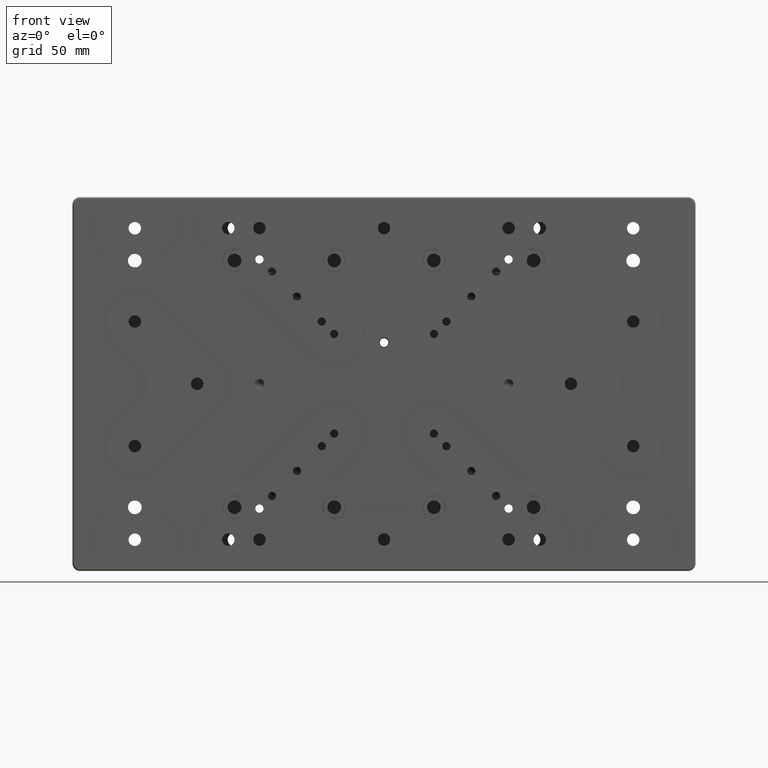
[diagram: clean part render]
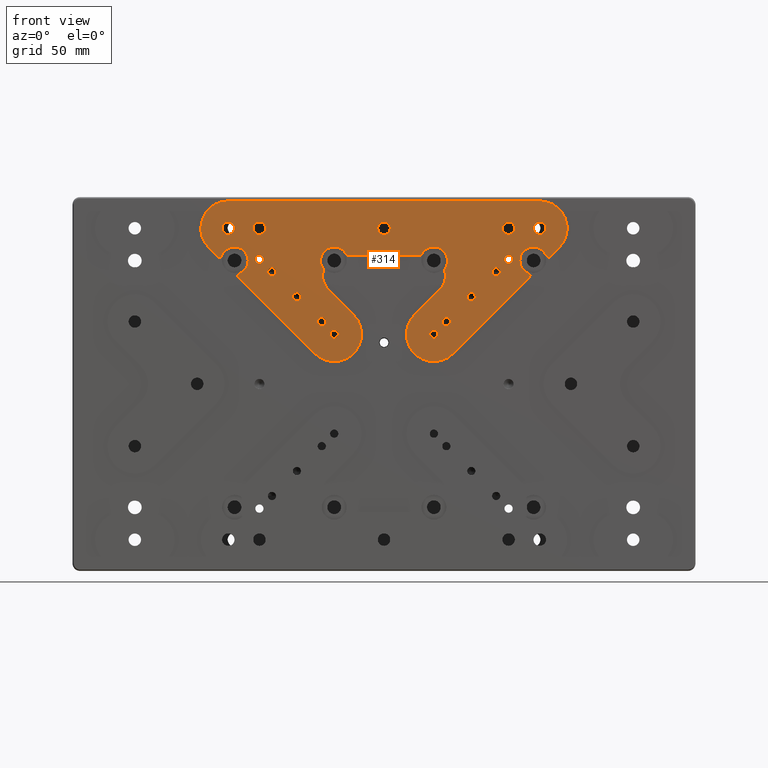
[diagram: same view with one face highlighted and labeled with its STEP entity id]
A machine part, front view. The second image highlights one B-rep face of the part: STEP entity #314.
In plain terms, the highlighted planar face has unit normal (0, -1, 0).
Its self-contained STEP definition (entity closure, byte-faithful):
#126 = VERTEX_POINT ( 'NONE', #35319 ) ;
#135 = CARTESIAN_POINT ( 'NONE',  ( -25.33468588810999833, -22.00000000000000000, 45.78635940414000771 ) ) ;
#165 = CARTESIAN_POINT ( 'NONE',  ( 70.27817459304999659, -22.00000000000000000, 54.72182540695000341 ) ) ;
#235 = AXIS2_PLACEMENT_3D ( 'NONE', #4990, #5521, #32147 ) ;
#289 = CARTESIAN_POINT ( 'NONE',  ( -24.51396498224690390, -22.00000000000000000, 46.35768872658108108 ) ) ;
#314 = ADVANCED_FACE ( 'NONE', ( #20672, #7757, #14792, #34071, #18635, #9782, #4073, #12105, #9954, #4428, #7116, #17644, #15150, #28354, #17994, #33903 ), #26864, .T. ) ;
#387 = DIRECTION ( 'NONE',  ( -0.7071067811865474617, 0.000000000000000000, -0.7071067811865474617 ) ) ;
#490 = AXIS2_PLACEMENT_3D ( 'NONE', #9859, #14870, #12178 ) ;
#622 = AXIS2_PLACEMENT_3D ( 'NONE', #8923, #24992, #24641 ) ;
#741 = DIRECTION ( 'NONE',  ( 0.000000000000000000, 0.000000000000000000, -1.000000000000000000 ) ) ;
#841 = VERTEX_POINT ( 'NONE', #32891 ) ;
#857 = DIRECTION ( 'NONE',  ( -0.000000000000000000, 1.000000000000000000, -0.000000000000000000 ) ) ;
#961 = CARTESIAN_POINT ( 'NONE',  ( 22.28679656440368717, -22.00000000000000000, 37.84314575050630935 ) ) ;
#969 = EDGE_CURVE ( 'NONE', #23107, #2589, #21902, .T. ) ;
#1018 = ORIENTED_EDGE ( 'NONE', *, *, #19244, .T. ) ;
#1122 = EDGE_CURVE ( 'NONE', #7445, #17041, #12797, .T. ) ;
#1287 = AXIS2_PLACEMENT_3D ( 'NONE', #29651, #21081, #13047 ) ;
#1350 = ORIENTED_EDGE ( 'NONE', *, *, #25538, .T. ) ;
#1408 = VERTEX_POINT ( 'NONE', #14818 ) ;
#1428 = EDGE_CURVE ( 'NONE', #5919, #11094, #6550, .T. ) ;
#1431 = DIRECTION ( 'NONE',  ( -5.204170427930416550E-15, 0.000000000000000000, -1.000000000000000000 ) ) ;
#1472 = CIRCLE ( 'NONE', #19158, 2.500000000000002220 ) ;
#1579 = CARTESIAN_POINT ( 'NONE',  ( 66.04110478143999785, -22.00000000000000000, 51.89896915770999897 ) ) ;
#1661 = DIRECTION ( 'NONE',  ( -0.000000000000000000, 1.000000000000000000, -0.000000000000000000 ) ) ;
#1681 = VERTEX_POINT ( 'NONE', #12582 ) ;
#1715 = VERTEX_POINT ( 'NONE', #12440 ) ;
#1717 = EDGE_CURVE ( 'NONE', #3681, #9119, #30631, .T. ) ;
#1742 = DIRECTION ( 'NONE',  ( 0.000000000000000000, 0.000000000000000000, 1.000000000000000000 ) ) ;
#2033 = LINE ( 'NONE', #31694, #25067 ) ;
#2124 = DIRECTION ( 'NONE',  ( -0.000000000000000000, 1.000000000000000000, -0.000000000000000000 ) ) ;
#2172 = DIRECTION ( 'NONE',  ( -0.000000000000000000, 1.000000000000000000, -0.000000000000000000 ) ) ;
#2390 = ORIENTED_EDGE ( 'NONE', *, *, #27738, .T. ) ;
#2443 = ORIENTED_EDGE ( 'NONE', *, *, #15724, .T. ) ;
#2470 = DIRECTION ( 'NONE',  ( 0.000000000000000000, 0.000000000000000000, -1.000000000000000000 ) ) ;
#2505 = DIRECTION ( 'NONE',  ( 0.000000000000000000, 0.000000000000000000, -1.000000000000000000 ) ) ;
#2589 = VERTEX_POINT ( 'NONE', #14453 ) ;
#2650 = EDGE_LOOP ( 'NONE', ( #2443 ) ) ;
#2786 = EDGE_CURVE ( 'NONE', #7997, #19605, #19019, .T. ) ;
#2853 = VECTOR ( 'NONE', #5654, 1000.000000000000114 ) ;
#3136 = VERTEX_POINT ( 'NONE', #11516 ) ;
#3619 = CARTESIAN_POINT ( 'NONE',  ( -15.12083890225190608, -22.00000000000000000, 52.03846153845997691 ) ) ;
#3629 = EDGE_CURVE ( 'NONE', #12613, #12613, #3712, .T. ) ;
#3673 = CIRCLE ( 'NONE', #23634, 5.499999999999998224 ) ;
#3681 = VERTEX_POINT ( 'NONE', #289 ) ;
#3712 = CIRCLE ( 'NONE', #4272, 1.649999999999998579 ) ;
#3718 = EDGE_CURVE ( 'NONE', #7694, #5270, #20458, .T. ) ;
#3733 = DIRECTION ( 'NONE',  ( 0.000000000000000000, 0.000000000000000000, -1.000000000000000000 ) ) ;
#3795 = ORIENTED_EDGE ( 'NONE', *, *, #23768, .T. ) ;
#3832 = CARTESIAN_POINT ( 'NONE',  ( -62.50000000000000000, -22.00000000000000000, 60.00000000000000000 ) ) ;
#3893 = VERTEX_POINT ( 'NONE', #12788 ) ;
#4007 = CIRCLE ( 'NONE', #31390, 1.649999999999998579 ) ;
#4073 = FACE_BOUND ( 'NONE', #4124, .T. ) ;
#4124 = EDGE_LOOP ( 'NONE', ( #6701 ) ) ;
#4172 = EDGE_CURVE ( 'NONE', #5919, #27802, #19701, .T. ) ;
#4192 = EDGE_CURVE ( 'NONE', #33791, #26666, #32692, .T. ) ;
#4194 = DIRECTION ( 'NONE',  ( -0.000000000000000000, 1.000000000000000000, -0.000000000000000000 ) ) ;
#4251 = VERTEX_POINT ( 'NONE', #35177 ) ;
#4272 = AXIS2_PLACEMENT_3D ( 'NONE', #17088, #27792, #17266 ) ;
#4428 = FACE_BOUND ( 'NONE', #19130, .T. ) ;
#4611 = CARTESIAN_POINT ( 'NONE',  ( -60.00000000000000000, -22.00000000000000000, 49.50000000000000000 ) ) ;
#4631 = AXIS2_PLACEMENT_3D ( 'NONE', #20951, #4194, #25793 ) ;
#4757 = ORIENTED_EDGE ( 'NONE', *, *, #6163, .T. ) ;
#4990 = CARTESIAN_POINT ( 'NONE',  ( -20.00000000000000000, -22.00000000000000000, 20.00000000000000000 ) ) ;
#5050 = DIRECTION ( 'NONE',  ( -0.000000000000000000, 1.000000000000000000, -0.000000000000000000 ) ) ;
#5270 = VERTEX_POINT ( 'NONE', #20080 ) ;
#5353 = AXIS2_PLACEMENT_3D ( 'NONE', #9427, #29541, #15326 ) ;
#5366 = ORIENTED_EDGE ( 'NONE', *, *, #32565, .F. ) ;
#5521 = DIRECTION ( 'NONE',  ( -0.000000000000000000, 1.000000000000000000, -0.000000000000000000 ) ) ;
#5539 = DIRECTION ( 'NONE',  ( 0.7071067811865474617, 0.000000000000000000, 0.7071067811865474617 ) ) ;
#5654 = DIRECTION ( 'NONE',  ( -0.7071067811865474617, 0.000000000000000000, 0.7071067811865474617 ) ) ;
#5733 = CIRCLE ( 'NONE', #19394, 11.00000000000000000 ) ;
#5776 = CIRCLE ( 'NONE', #4631, 2.500000000000002220 ) ;
#5805 = CARTESIAN_POINT ( 'NONE',  ( 15.12083890225009597, -22.00000000000000000, 52.03846153846092193 ) ) ;
#5836 = DIRECTION ( 'NONE',  ( 0.000000000000000000, 0.000000000000000000, 1.000000000000000000 ) ) ;
#5919 = VERTEX_POINT ( 'NONE', #30854 ) ;
#6163 = EDGE_CURVE ( 'NONE', #8379, #28938, #28400, .T. ) ;
#6333 = ORIENTED_EDGE ( 'NONE', *, *, #20483, .F. ) ;
#6550 = CIRCLE ( 'NONE', #29365, 5.499999999999998224 ) ;
#6629 = VECTOR ( 'NONE', #387, 1000.000000000000114 ) ;
#6701 = ORIENTED_EDGE ( 'NONE', *, *, #29204, .T. ) ;
#6841 = DIRECTION ( 'NONE',  ( 0.000000000000000000, 1.000000000000000000, 0.000000000000000000 ) ) ;
#6843 = CIRCLE ( 'NONE', #16512, 1.000000000000000888 ) ;
#6869 = CARTESIAN_POINT ( 'NONE',  ( -14.23371870265999917, -22.00000000000000000, 51.50000000000000711 ) ) ;
#6951 = VERTEX_POINT ( 'NONE', #10531 ) ;
#7006 = CIRCLE ( 'NONE', #13251, 1.649999999999998579 ) ;
#7041 = CARTESIAN_POINT ( 'NONE',  ( 16.62994231491000008, -22.00000000000000000, 51.50000000000000711 ) ) ;
#7099 = CARTESIAN_POINT ( 'NONE',  ( 50.00000000000000000, -22.00000000000000000, 60.00000000000000000 ) ) ;
#7116 = FACE_BOUND ( 'NONE', #28043, .T. ) ;
#7256 = CIRCLE ( 'NONE', #22627, 8.000000000000000000 ) ;
#7368 = CIRCLE ( 'NONE', #27314, 1.000000000000000888 ) ;
#7421 = CIRCLE ( 'NONE', #27369, 1.649999999999998579 ) ;
#7424 = DIRECTION ( 'NONE',  ( 0.000000000000000000, 0.000000000000000000, -1.000000000000000000 ) ) ;
#7445 = VERTEX_POINT ( 'NONE', #28111 ) ;
#7514 = DIRECTION ( 'NONE',  ( 0.000000000000000000, 0.000000000000000000, -1.000000000000000000 ) ) ;
#7694 = VERTEX_POINT ( 'NONE', #23098 ) ;
#7757 = FACE_BOUND ( 'NONE', #13665, .T. ) ;
#7761 = DIRECTION ( 'NONE',  ( -0.000000000000000000, 1.000000000000000000, -0.000000000000000000 ) ) ;
#7866 = DIRECTION ( 'NONE',  ( -0.000000000000000000, 1.000000000000000000, -0.000000000000000000 ) ) ;
#7969 = EDGE_LOOP ( 'NONE', ( #34433 ) ) ;
#7997 = VERTEX_POINT ( 'NONE', #33430 ) ;
#8275 = VERTEX_POINT ( 'NONE', #35061 ) ;
#8362 = DIRECTION ( 'NONE',  ( 1.734723475976805517E-14, 0.000000000000000000, -1.000000000000000000 ) ) ;
#8379 = VERTEX_POINT ( 'NONE', #24455 ) ;
#8413 = VERTEX_POINT ( 'NONE', #35361 ) ;
#8470 = AXIS2_PLACEMENT_3D ( 'NONE', #23150, #34051, #12798 ) ;
#8585 = ORIENTED_EDGE ( 'NONE', *, *, #27463, .T. ) ;
#8605 = VECTOR ( 'NONE', #31947, 1000.000000000000114 ) ;
#8620 = VECTOR ( 'NONE', #5539, 1000.000000000000114 ) ;
#8623 = DIRECTION ( 'NONE',  ( 0.000000000000000000, 0.000000000000000000, -1.000000000000000000 ) ) ;
#8923 = CARTESIAN_POINT ( 'NONE',  ( 25.33468588810999833, -22.00000000000000000, 45.78635940414000771 ) ) ;
#8955 = EDGE_CURVE ( 'NONE', #15905, #15905, #5776, .T. ) ;
#9119 = VERTEX_POINT ( 'NONE', #3619 ) ;
#9216 = CARTESIAN_POINT ( 'NONE',  ( -20.00000000000000000, -22.00000000000000000, 49.50000000000000000 ) ) ;
#9396 = CARTESIAN_POINT ( 'NONE',  ( 70.27817459304999659, -22.00000000000000000, 54.72182540695000341 ) ) ;
#9427 = CARTESIAN_POINT ( 'NONE',  ( -125.0000000000000000, -22.00000000000000000, 75.00000000000000000 ) ) ;
#9581 = EDGE_CURVE ( 'NONE', #841, #29764, #32027, .T. ) ;
#9689 = CARTESIAN_POINT ( 'NONE',  ( -14.23371870265999917, -22.00000000000000000, 52.50000000000000000 ) ) ;
#9782 = FACE_BOUND ( 'NONE', #2650, .T. ) ;
#9801 = DIRECTION ( 'NONE',  ( 0.000000000000000000, 1.000000000000000000, 0.000000000000000000 ) ) ;
#9859 = CARTESIAN_POINT ( 'NONE',  ( -35.00000000000000000, -22.00000000000000000, 35.00000000000000000 ) ) ;
#9954 = FACE_BOUND ( 'NONE', #7969, .T. ) ;
#10222 = CARTESIAN_POINT ( 'NONE',  ( -45.00000000000000000, -22.00000000000000000, 45.00000000000000000 ) ) ;
#10369 = CARTESIAN_POINT ( 'NONE',  ( 62.50000000000000000, -22.00000000000000000, 60.00000000000000000 ) ) ;
#10401 = DIRECTION ( 'NONE',  ( 0.000000000000000000, 0.000000000000000000, -1.000000000000000000 ) ) ;
#10531 = CARTESIAN_POINT ( 'NONE',  ( -58.30813762347576557, -22.00000000000000000, 42.75178843737423051 ) ) ;
#10555 = VECTOR ( 'NONE', #20278, 1000.000000000000114 ) ;
#10703 = DIRECTION ( 'NONE',  ( 0.000000000000000000, 1.000000000000000000, 0.000000000000000000 ) ) ;
#10765 = ORIENTED_EDGE ( 'NONE', *, *, #19383, .F. ) ;
#10808 = VERTEX_POINT ( 'NONE', #24552 ) ;
#11013 = DIRECTION ( 'NONE',  ( 0.000000000000000000, 0.000000000000000000, -1.000000000000000000 ) ) ;
#11094 = VERTEX_POINT ( 'NONE', #23797 ) ;
#11516 = CARTESIAN_POINT ( 'NONE',  ( 0.000000000000000000, -22.00000000000000000, 60.00000000000000000 ) ) ;
#11701 = ORIENTED_EDGE ( 'NONE', *, *, #1717, .T. ) ;
#11825 = DIRECTION ( 'NONE',  ( -0.000000000000000000, 1.000000000000000000, -0.000000000000000000 ) ) ;
#11863 = VERTEX_POINT ( 'NONE', #3832 ) ;
#12105 = FACE_BOUND ( 'NONE', #24033, .T. ) ;
#12126 = VERTEX_POINT ( 'NONE', #6869 ) ;
#12178 = DIRECTION ( 'NONE',  ( 0.000000000000000000, 0.000000000000000000, -1.000000000000000000 ) ) ;
#12220 = ORIENTED_EDGE ( 'NONE', *, *, #28216, .T. ) ;
#12267 = VERTEX_POINT ( 'NONE', #7099 ) ;
#12440 = CARTESIAN_POINT ( 'NONE',  ( 45.00000000000000000, -22.00000000000000000, 43.35000000000000142 ) ) ;
#12513 = CARTESIAN_POINT ( 'NONE',  ( 14.23371870265999917, -22.00000000000000000, 52.50000000000000000 ) ) ;
#12553 = CARTESIAN_POINT ( 'NONE',  ( -66.74821156262500210, -22.00000000000000000, 51.19186237652500893 ) ) ;
#12582 = CARTESIAN_POINT ( 'NONE',  ( 50.00000000000000000, -22.00000000000000000, 48.35000000000000142 ) ) ;
#12613 = VERTEX_POINT ( 'NONE', #23501 ) ;
#12635 = CIRCLE ( 'NONE', #32600, 1.649999999999998579 ) ;
#12664 = CARTESIAN_POINT ( 'NONE',  ( -27.77817459305000014, -22.00000000000000000, 12.22182540694999986 ) ) ;
#12723 = DIRECTION ( 'NONE',  ( 0.000000000000000000, 0.000000000000000000, 1.000000000000000000 ) ) ;
#12788 = CARTESIAN_POINT ( 'NONE',  ( -24.36749215775230937, -22.00000000000000000, 45.53231947034836224 ) ) ;
#12797 = CIRCLE ( 'NONE', #235, 11.00000000000000000 ) ;
#12798 = DIRECTION ( 'NONE',  ( 0.000000000000000000, 0.000000000000000000, -1.000000000000000000 ) ) ;
#12973 = CIRCLE ( 'NONE', #18101, 1.000000000000000888 ) ;
#13047 = DIRECTION ( 'NONE',  ( 0.000000000000000000, 0.000000000000000000, -1.000000000000000000 ) ) ;
#13066 = AXIS2_PLACEMENT_3D ( 'NONE', #20027, #17000, #741 ) ;
#13251 = AXIS2_PLACEMENT_3D ( 'NONE', #10222, #31840, #26311 ) ;
#13473 = EDGE_CURVE ( 'NONE', #19983, #8413, #32387, .T. ) ;
#13665 = EDGE_LOOP ( 'NONE', ( #20464 ) ) ;
#13681 = CIRCLE ( 'NONE', #27920, 1.000000000000000888 ) ;
#13720 = VECTOR ( 'NONE', #31318, 1000.000000000000000 ) ;
#13838 = DIRECTION ( 'NONE',  ( -0.000000000000000000, 1.000000000000000000, -0.000000000000000000 ) ) ;
#14045 = LINE ( 'NONE', #19203, #2853 ) ;
#14080 = AXIS2_PLACEMENT_3D ( 'NONE', #28945, #32153, #7514 ) ;
#14092 = CARTESIAN_POINT ( 'NONE',  ( -16.62994231491000008, -22.00000000000000000, 43.50000000000000711 ) ) ;
#14189 = ORIENTED_EDGE ( 'NONE', *, *, #16268, .T. ) ;
#14453 = CARTESIAN_POINT ( 'NONE',  ( 14.23371870265999917, -22.00000000000000000, 51.50000000000000711 ) ) ;
#14537 = EDGE_LOOP ( 'NONE', ( #27472 ) ) ;
#14605 = EDGE_CURVE ( 'NONE', #1408, #1408, #7006, .T. ) ;
#14792 = FACE_BOUND ( 'NONE', #32295, .T. ) ;
#14818 = CARTESIAN_POINT ( 'NONE',  ( -45.00000000000000000, -22.00000000000000000, 43.35000000000000142 ) ) ;
#14870 = DIRECTION ( 'NONE',  ( -0.000000000000000000, 1.000000000000000000, -0.000000000000000000 ) ) ;
#14941 = CARTESIAN_POINT ( 'NONE',  ( 35.00000000000000000, -22.00000000000000000, 35.00000000000000000 ) ) ;
#15150 = FACE_BOUND ( 'NONE', #33045, .T. ) ;
#15219 = VECTOR ( 'NONE', #32997, 1000.000000000000000 ) ;
#15308 = VERTEX_POINT ( 'NONE', #26196 ) ;
#15326 = DIRECTION ( 'NONE',  ( 0.000000000000000000, -0.000000000000000000, -1.000000000000000000 ) ) ;
#15368 = CIRCLE ( 'NONE', #27882, 2.500000000000002220 ) ;
#15519 = DIRECTION ( 'NONE',  ( 0.000000000000000000, 0.000000000000000000, 1.000000000000000000 ) ) ;
#15551 = CIRCLE ( 'NONE', #1287, 1.649999999999998579 ) ;
#15724 = EDGE_CURVE ( 'NONE', #32125, #32125, #31034, .T. ) ;
#15809 = ORIENTED_EDGE ( 'NONE', *, *, #25783, .F. ) ;
#15905 = VERTEX_POINT ( 'NONE', #10369 ) ;
#15978 = CARTESIAN_POINT ( 'NONE',  ( -50.00000000000000000, -22.00000000000000000, 50.00000000000000000 ) ) ;
#16157 = ORIENTED_EDGE ( 'NONE', *, *, #21141, .F. ) ;
#16268 = EDGE_CURVE ( 'NONE', #23107, #29764, #3673, .T. ) ;
#16315 = ORIENTED_EDGE ( 'NONE', *, *, #25954, .T. ) ;
#16512 = AXIS2_PLACEMENT_3D ( 'NONE', #1579, #9801, #15519 ) ;
#16641 = CARTESIAN_POINT ( 'NONE',  ( 65.11170404583428706, -22.00000000000000000, 51.52989697960132531 ) ) ;
#16670 = EDGE_CURVE ( 'NONE', #19435, #19605, #33172, .T. ) ;
#17000 = DIRECTION ( 'NONE',  ( -0.000000000000000000, 1.000000000000000000, -0.000000000000000000 ) ) ;
#17041 = VERTEX_POINT ( 'NONE', #32791 ) ;
#17088 = CARTESIAN_POINT ( 'NONE',  ( -20.00000000000000000, -22.00000000000000000, 20.00000000000000000 ) ) ;
#17091 = CARTESIAN_POINT ( 'NONE',  ( -62.50000000000000000, -22.00000000000000000, 73.50000000000000000 ) ) ;
#17266 = DIRECTION ( 'NONE',  ( 0.000000000000000000, 0.000000000000000000, -1.000000000000000000 ) ) ;
#17556 = ORIENTED_EDGE ( 'NONE', *, *, #28726, .T. ) ;
#17644 = FACE_BOUND ( 'NONE', #31574, .T. ) ;
#17994 = FACE_BOUND ( 'NONE', #32329, .T. ) ;
#18101 = AXIS2_PLACEMENT_3D ( 'NONE', #30675, #19947, #30855 ) ;
#18157 = CIRCLE ( 'NONE', #8470, 1.649999999999998579 ) ;
#18236 = EDGE_CURVE ( 'NONE', #33003, #33003, #18157, .T. ) ;
#18239 = ORIENTED_EDGE ( 'NONE', *, *, #8955, .T. ) ;
#18621 = CARTESIAN_POINT ( 'NONE',  ( 12.22182540694999986, -22.00000000000000000, 27.77817459305000014 ) ) ;
#18635 = FACE_BOUND ( 'NONE', #22581, .T. ) ;
#18865 = ORIENTED_EDGE ( 'NONE', *, *, #33670, .T. ) ;
#19019 = CIRCLE ( 'NONE', #23596, 10.99999999999999645 ) ;
#19095 = CARTESIAN_POINT ( 'NONE',  ( -66.04110478143999785, -22.00000000000000000, 51.89896915770999897 ) ) ;
#19109 = EDGE_CURVE ( 'NONE', #19435, #5270, #25606, .T. ) ;
#19114 = EDGE_LOOP ( 'NONE', ( #8585 ) ) ;
#19130 = EDGE_LOOP ( 'NONE', ( #3795 ) ) ;
#19158 = AXIS2_PLACEMENT_3D ( 'NONE', #33093, #21998, #8623 ) ;
#19201 = CIRCLE ( 'NONE', #26611, 2.500000000000002220 ) ;
#19203 = CARTESIAN_POINT ( 'NONE',  ( -22.28679656439999945, -22.00000000000000000, 37.84314575050999707 ) ) ;
#19244 = EDGE_CURVE ( 'NONE', #126, #126, #27318, .T. ) ;
#19383 = EDGE_CURVE ( 'NONE', #6951, #11094, #31333, .T. ) ;
#19394 = AXIS2_PLACEMENT_3D ( 'NONE', #28624, #11825, #22720 ) ;
#19435 = VERTEX_POINT ( 'NONE', #22448 ) ;
#19605 = VERTEX_POINT ( 'NONE', #25300 ) ;
#19701 = CIRCLE ( 'NONE', #25748, 1.000000000000000888 ) ;
#19947 = DIRECTION ( 'NONE',  ( -0.000000000000000000, 1.000000000000000000, -0.000000000000000000 ) ) ;
#19983 = VERTEX_POINT ( 'NONE', #961 ) ;
#20027 = CARTESIAN_POINT ( 'NONE',  ( 62.50000000000000000, -22.00000000000000000, 62.50000000000000000 ) ) ;
#20059 = EDGE_CURVE ( 'NONE', #6951, #17041, #2033, .T. ) ;
#20080 = CARTESIAN_POINT ( 'NONE',  ( 70.27817459304999659, -22.00000000000000000, 54.72182540695000341 ) ) ;
#20278 = DIRECTION ( 'NONE',  ( 0.7071067811865474617, 0.000000000000000000, 0.7071067811865474617 ) ) ;
#20294 = CARTESIAN_POINT ( 'NONE',  ( 60.00000000000000000, -22.00000000000000000, 49.50000000000000000 ) ) ;
#20304 = CARTESIAN_POINT ( 'NONE',  ( 58.30813762347500528, -22.00000000000000000, 42.75178843737501211 ) ) ;
#20404 = LINE ( 'NONE', #7041, #13720 ) ;
#20458 = LINE ( 'NONE', #9396, #10555 ) ;
#20464 = ORIENTED_EDGE ( 'NONE', *, *, #33260, .T. ) ;
#20483 = EDGE_CURVE ( 'NONE', #12126, #9119, #7368, .T. ) ;
#20672 = FACE_BOUND ( 'NONE', #14537, .T. ) ;
#20926 = ORIENTED_EDGE ( 'NONE', *, *, #29452, .T. ) ;
#20951 = CARTESIAN_POINT ( 'NONE',  ( 62.50000000000000000, -22.00000000000000000, 62.50000000000000000 ) ) ;
#21040 = CARTESIAN_POINT ( 'NONE',  ( 35.00000000000000000, -22.00000000000000000, 33.35000000000000142 ) ) ;
#21042 = LINE ( 'NONE', #12664, #8605 ) ;
#21081 = DIRECTION ( 'NONE',  ( -0.000000000000000000, 1.000000000000000000, -0.000000000000000000 ) ) ;
#21111 = CARTESIAN_POINT ( 'NONE',  ( 20.00000000000000000, -22.00000000000000000, 20.00000000000000000 ) ) ;
#21141 = EDGE_CURVE ( 'NONE', #3681, #3893, #13681, .T. ) ;
#21280 = CARTESIAN_POINT ( 'NONE',  ( 16.62994231491000008, -22.00000000000000000, 43.50000000000000711 ) ) ;
#21567 = DIRECTION ( 'NONE',  ( -0.000000000000000000, 1.000000000000000000, -0.000000000000000000 ) ) ;
#21609 = CARTESIAN_POINT ( 'NONE',  ( 50.00000000000000000, -22.00000000000000000, 50.00000000000000000 ) ) ;
#21625 = EDGE_CURVE ( 'NONE', #33791, #8413, #5733, .T. ) ;
#21745 = CARTESIAN_POINT ( 'NONE',  ( -50.00000000000000000, -22.00000000000000000, 62.50000000000000000 ) ) ;
#21902 = CIRCLE ( 'NONE', #24199, 1.000000000000000888 ) ;
#21998 = DIRECTION ( 'NONE',  ( -0.000000000000000000, 1.000000000000000000, -0.000000000000000000 ) ) ;
#22410 = VERTEX_POINT ( 'NONE', #28298 ) ;
#22448 = CARTESIAN_POINT ( 'NONE',  ( 62.50000000000000000, -22.00000000000000000, 73.50000000000000000 ) ) ;
#22581 = EDGE_LOOP ( 'NONE', ( #1018 ) ) ;
#22627 = AXIS2_PLACEMENT_3D ( 'NONE', #14092, #857, #3733 ) ;
#22649 = CIRCLE ( 'NONE', #32923, 1.649999999999998579 ) ;
#22720 = DIRECTION ( 'NONE',  ( 1.892425610156516974E-15, 0.000000000000000000, -1.000000000000000000 ) ) ;
#22772 = AXIS2_PLACEMENT_3D ( 'NONE', #24461, #35368, #29476 ) ;
#22812 = ORIENTED_EDGE ( 'NONE', *, *, #3629, .T. ) ;
#22839 = ORIENTED_EDGE ( 'NONE', *, *, #9581, .F. ) ;
#23000 = ORIENTED_EDGE ( 'NONE', *, *, #18236, .T. ) ;
#23098 = CARTESIAN_POINT ( 'NONE',  ( 66.74821156262578370, -22.00000000000000000, 51.19186237652423443 ) ) ;
#23107 = VERTEX_POINT ( 'NONE', #5805 ) ;
#23150 = CARTESIAN_POINT ( 'NONE',  ( -25.00000000000000000, -22.00000000000000000, 25.00000000000000000 ) ) ;
#23501 = CARTESIAN_POINT ( 'NONE',  ( -20.00000000000000000, -22.00000000000000000, 18.35000000000000142 ) ) ;
#23537 = CARTESIAN_POINT ( 'NONE',  ( -62.50000000000000000, -22.00000000000000000, 62.50000000000000000 ) ) ;
#23596 = AXIS2_PLACEMENT_3D ( 'NONE', #23537, #34431, #11013 ) ;
#23613 = AXIS2_PLACEMENT_3D ( 'NONE', #14941, #5050, #34036 ) ;
#23634 = AXIS2_PLACEMENT_3D ( 'NONE', #32325, #10703, #29646 ) ;
#23768 = EDGE_CURVE ( 'NONE', #1715, #1715, #15551, .T. ) ;
#23797 = CARTESIAN_POINT ( 'NONE',  ( -57.97010302039867469, -22.00000000000000000, 44.38829595416571294 ) ) ;
#23816 = DIRECTION ( 'NONE',  ( 0.7071067811865474617, 0.000000000000000000, -0.7071067811865474617 ) ) ;
#23968 = CARTESIAN_POINT ( 'NONE',  ( 25.00000000000000000, -22.00000000000000000, 25.00000000000000000 ) ) ;
#24033 = EDGE_LOOP ( 'NONE', ( #18239 ) ) ;
#24199 = AXIS2_PLACEMENT_3D ( 'NONE', #12513, #2124, #1431 ) ;
#24240 = CARTESIAN_POINT ( 'NONE',  ( -25.00000000000000000, -22.00000000000000000, 23.35000000000000142 ) ) ;
#24252 = ORIENTED_EDGE ( 'NONE', *, *, #1428, .T. ) ;
#24338 = AXIS2_PLACEMENT_3D ( 'NONE', #9216, #33681, #5836 ) ;
#24344 = CARTESIAN_POINT ( 'NONE',  ( 0.000000000000000000, -22.00000000000000000, 62.50000000000000000 ) ) ;
#24427 = ORIENTED_EDGE ( 'NONE', *, *, #13473, .T. ) ;
#24455 = CARTESIAN_POINT ( 'NONE',  ( 57.97010302039895180, -22.00000000000000000, 44.38829595416639506 ) ) ;
#24461 = CARTESIAN_POINT ( 'NONE',  ( -57.60103084229000103, -22.00000000000000000, 43.45889521856000215 ) ) ;
#24483 = CIRCLE ( 'NONE', #25633, 8.000000000000000000 ) ;
#24552 = CARTESIAN_POINT ( 'NONE',  ( 20.00000000000000000, -22.00000000000000000, 18.35000000000000142 ) ) ;
#24641 = DIRECTION ( 'NONE',  ( 0.000000000000000000, 0.000000000000000000, 1.000000000000000000 ) ) ;
#24702 = EDGE_CURVE ( 'NONE', #12267, #12267, #1472, .T. ) ;
#24992 = DIRECTION ( 'NONE',  ( 0.000000000000000000, 1.000000000000000000, 0.000000000000000000 ) ) ;
#25067 = VECTOR ( 'NONE', #23816, 1000.000000000000114 ) ;
#25300 = CARTESIAN_POINT ( 'NONE',  ( -62.50000000000000000, -22.00000000000000000, 73.50000000000000000 ) ) ;
#25538 = EDGE_CURVE ( 'NONE', #15308, #15308, #19201, .T. ) ;
#25606 = CIRCLE ( 'NONE', #13066, 10.99999999999999645 ) ;
#25633 = AXIS2_PLACEMENT_3D ( 'NONE', #21280, #2172, #32186 ) ;
#25748 = AXIS2_PLACEMENT_3D ( 'NONE', #19095, #7866, #2505 ) ;
#25783 = EDGE_CURVE ( 'NONE', #8379, #26666, #12973, .T. ) ;
#25793 = DIRECTION ( 'NONE',  ( 0.000000000000000000, 0.000000000000000000, -1.000000000000000000 ) ) ;
#25812 = ORIENTED_EDGE ( 'NONE', *, *, #3718, .T. ) ;
#25954 = EDGE_CURVE ( 'NONE', #10808, #10808, #22649, .T. ) ;
#26040 = DIRECTION ( 'NONE',  ( 0.000000000000000000, 1.000000000000000000, 0.000000000000000000 ) ) ;
#26102 = ORIENTED_EDGE ( 'NONE', *, *, #16670, .T. ) ;
#26196 = CARTESIAN_POINT ( 'NONE',  ( -50.00000000000000000, -22.00000000000000000, 60.00000000000000000 ) ) ;
#26303 = ORIENTED_EDGE ( 'NONE', *, *, #969, .F. ) ;
#26311 = DIRECTION ( 'NONE',  ( 0.000000000000000000, 0.000000000000000000, -1.000000000000000000 ) ) ;
#26611 = AXIS2_PLACEMENT_3D ( 'NONE', #21745, #27111, #2470 ) ;
#26631 = ORIENTED_EDGE ( 'NONE', *, *, #4172, .F. ) ;
#26666 = VERTEX_POINT ( 'NONE', #20304 ) ;
#26864 = PLANE ( 'NONE',  #5353 ) ;
#27040 = DIRECTION ( 'NONE',  ( 0.000000000000000000, 0.000000000000000000, -1.000000000000000000 ) ) ;
#27111 = DIRECTION ( 'NONE',  ( -0.000000000000000000, 1.000000000000000000, -0.000000000000000000 ) ) ;
#27158 = ORIENTED_EDGE ( 'NONE', *, *, #21625, .F. ) ;
#27180 = ORIENTED_EDGE ( 'NONE', *, *, #19109, .F. ) ;
#27314 = AXIS2_PLACEMENT_3D ( 'NONE', #9689, #6841, #12723 ) ;
#27318 = CIRCLE ( 'NONE', #490, 1.649999999999998579 ) ;
#27369 = AXIS2_PLACEMENT_3D ( 'NONE', #21609, #31813, #32171 ) ;
#27463 = EDGE_CURVE ( 'NONE', #3136, #3136, #15368, .T. ) ;
#27472 = ORIENTED_EDGE ( 'NONE', *, *, #28433, .T. ) ;
#27738 = EDGE_CURVE ( 'NONE', #841, #19983, #24483, .T. ) ;
#27792 = DIRECTION ( 'NONE',  ( -0.000000000000000000, 1.000000000000000000, -0.000000000000000000 ) ) ;
#27802 = VERTEX_POINT ( 'NONE', #12553 ) ;
#27882 = AXIS2_PLACEMENT_3D ( 'NONE', #24344, #13838, #27040 ) ;
#27920 = AXIS2_PLACEMENT_3D ( 'NONE', #135, #21567, #8362 ) ;
#28043 = EDGE_LOOP ( 'NONE', ( #23000 ) ) ;
#28111 = CARTESIAN_POINT ( 'NONE',  ( -12.22182540694648978, -22.00000000000000000, 27.77817459305351022 ) ) ;
#28216 = EDGE_CURVE ( 'NONE', #7445, #4251, #14045, .T. ) ;
#28298 = CARTESIAN_POINT ( 'NONE',  ( -50.00000000000000000, -22.00000000000000000, 48.35000000000000142 ) ) ;
#28354 = FACE_BOUND ( 'NONE', #19114, .T. ) ;
#28400 = CIRCLE ( 'NONE', #29521, 5.499999999999998224 ) ;
#28424 = ORIENTED_EDGE ( 'NONE', *, *, #1122, .F. ) ;
#28433 = EDGE_CURVE ( 'NONE', #22410, #22410, #4007, .T. ) ;
#28521 = DIRECTION ( 'NONE',  ( 0.000000000000000000, 0.000000000000000000, 1.000000000000000000 ) ) ;
#28624 = CARTESIAN_POINT ( 'NONE',  ( 20.00000000000000000, -22.00000000000000000, 20.00000000000000000 ) ) ;
#28726 = EDGE_CURVE ( 'NONE', #12126, #2589, #20404, .T. ) ;
#28938 = VERTEX_POINT ( 'NONE', #16641 ) ;
#28945 = CARTESIAN_POINT ( 'NONE',  ( -62.50000000000000000, -22.00000000000000000, 62.50000000000000000 ) ) ;
#29204 = EDGE_CURVE ( 'NONE', #11863, #11863, #34065, .T. ) ;
#29365 = AXIS2_PLACEMENT_3D ( 'NONE', #4611, #26040, #1742 ) ;
#29452 = EDGE_CURVE ( 'NONE', #4251, #3893, #7256, .T. ) ;
#29476 = DIRECTION ( 'NONE',  ( 0.000000000000000000, 0.000000000000000000, 1.000000000000000000 ) ) ;
#29521 = AXIS2_PLACEMENT_3D ( 'NONE', #20294, #31198, #28521 ) ;
#29541 = DIRECTION ( 'NONE',  ( 0.000000000000000000, -1.000000000000000000, 0.000000000000000000 ) ) ;
#29646 = DIRECTION ( 'NONE',  ( 0.000000000000000000, 0.000000000000000000, 1.000000000000000000 ) ) ;
#29651 = CARTESIAN_POINT ( 'NONE',  ( 45.00000000000000000, -22.00000000000000000, 45.00000000000000000 ) ) ;
#29764 = VERTEX_POINT ( 'NONE', #33999 ) ;
#30631 = CIRCLE ( 'NONE', #24338, 5.499999999999998224 ) ;
#30675 = CARTESIAN_POINT ( 'NONE',  ( 57.60103084229000103, -22.00000000000000000, 43.45889521856000215 ) ) ;
#30854 = CARTESIAN_POINT ( 'NONE',  ( -65.11170404583360494, -22.00000000000000000, 51.52989697960104820 ) ) ;
#30855 = DIRECTION ( 'NONE',  ( 6.938893903907222067E-15, 0.000000000000000000, -1.000000000000000000 ) ) ;
#31034 = CIRCLE ( 'NONE', #23613, 1.649999999999998579 ) ;
#31198 = DIRECTION ( 'NONE',  ( 0.000000000000000000, 1.000000000000000000, 0.000000000000000000 ) ) ;
#31318 = DIRECTION ( 'NONE',  ( 1.000000000000000000, 0.000000000000000000, -0.000000000000000000 ) ) ;
#31333 = CIRCLE ( 'NONE', #22772, 1.000000000000000888 ) ;
#31390 = AXIS2_PLACEMENT_3D ( 'NONE', #15978, #7761, #7424 ) ;
#31463 = EDGE_LOOP ( 'NONE', ( #4757, #5366, #25812, #27180, #26102, #34589, #18865, #26631, #24252, #10765, #33925, #28424, #12220, #20926, #16157, #11701, #6333, #17556, #26303, #14189, #22839, #2390, #24427, #27158, #33287, #15809 ) ) ;
#31574 = EDGE_LOOP ( 'NONE', ( #32094 ) ) ;
#31694 = CARTESIAN_POINT ( 'NONE',  ( -27.77817459305000014, -22.00000000000000000, 12.22182540694999986 ) ) ;
#31813 = DIRECTION ( 'NONE',  ( -0.000000000000000000, 1.000000000000000000, -0.000000000000000000 ) ) ;
#31840 = DIRECTION ( 'NONE',  ( -0.000000000000000000, 1.000000000000000000, -0.000000000000000000 ) ) ;
#31947 = DIRECTION ( 'NONE',  ( 0.7071067811865474617, 0.000000000000000000, -0.7071067811865474617 ) ) ;
#32027 = CIRCLE ( 'NONE', #622, 1.000000000000000888 ) ;
#32094 = ORIENTED_EDGE ( 'NONE', *, *, #34292, .T. ) ;
#32125 = VERTEX_POINT ( 'NONE', #21040 ) ;
#32147 = DIRECTION ( 'NONE',  ( 0.000000000000000000, 0.000000000000000000, -1.000000000000000000 ) ) ;
#32153 = DIRECTION ( 'NONE',  ( -0.000000000000000000, 1.000000000000000000, -0.000000000000000000 ) ) ;
#32171 = DIRECTION ( 'NONE',  ( 0.000000000000000000, 0.000000000000000000, -1.000000000000000000 ) ) ;
#32186 = DIRECTION ( 'NONE',  ( 1.734723475976807094E-15, 0.000000000000000000, -1.000000000000000000 ) ) ;
#32295 = EDGE_LOOP ( 'NONE', ( #22812 ) ) ;
#32325 = CARTESIAN_POINT ( 'NONE',  ( 20.00000000000000000, -22.00000000000000000, 49.50000000000000000 ) ) ;
#32329 = EDGE_LOOP ( 'NONE', ( #33530 ) ) ;
#32368 = DIRECTION ( 'NONE',  ( 0.000000000000000000, 0.000000000000000000, -1.000000000000000000 ) ) ;
#32387 = LINE ( 'NONE', #18621, #6629 ) ;
#32565 = EDGE_CURVE ( 'NONE', #7694, #28938, #6843, .T. ) ;
#32600 = AXIS2_PLACEMENT_3D ( 'NONE', #23968, #34865, #10401 ) ;
#32692 = LINE ( 'NONE', #165, #8620 ) ;
#32791 = CARTESIAN_POINT ( 'NONE',  ( -27.77817459305000014, -22.00000000000000000, 12.22182540694999986 ) ) ;
#32891 = CARTESIAN_POINT ( 'NONE',  ( 24.36749215775408572, -22.00000000000000000, 45.53231947034882410 ) ) ;
#32923 = AXIS2_PLACEMENT_3D ( 'NONE', #21111, #1661, #32368 ) ;
#32997 = DIRECTION ( 'NONE',  ( -1.000000000000000000, 0.000000000000000000, -0.000000000000000000 ) ) ;
#33003 = VERTEX_POINT ( 'NONE', #24240 ) ;
#33045 = EDGE_LOOP ( 'NONE', ( #1350 ) ) ;
#33093 = CARTESIAN_POINT ( 'NONE',  ( 50.00000000000000000, -22.00000000000000000, 62.50000000000000000 ) ) ;
#33172 = LINE ( 'NONE', #17091, #15219 ) ;
#33260 = EDGE_CURVE ( 'NONE', #1681, #1681, #7421, .T. ) ;
#33287 = ORIENTED_EDGE ( 'NONE', *, *, #4192, .T. ) ;
#33430 = CARTESIAN_POINT ( 'NONE',  ( -70.27817459305100556, -22.00000000000000000, 54.72182540694898734 ) ) ;
#33530 = ORIENTED_EDGE ( 'NONE', *, *, #24702, .T. ) ;
#33670 = EDGE_CURVE ( 'NONE', #7997, #27802, #21042, .T. ) ;
#33681 = DIRECTION ( 'NONE',  ( 0.000000000000000000, 1.000000000000000000, 0.000000000000000000 ) ) ;
#33791 = VERTEX_POINT ( 'NONE', #34386 ) ;
#33903 = FACE_OUTER_BOUND ( 'NONE', #31463, .T. ) ;
#33925 = ORIENTED_EDGE ( 'NONE', *, *, #20059, .T. ) ;
#33999 = CARTESIAN_POINT ( 'NONE',  ( 24.51396498224690390, -22.00000000000000000, 46.35768872658108108 ) ) ;
#34036 = DIRECTION ( 'NONE',  ( 0.000000000000000000, 0.000000000000000000, -1.000000000000000000 ) ) ;
#34051 = DIRECTION ( 'NONE',  ( -0.000000000000000000, 1.000000000000000000, -0.000000000000000000 ) ) ;
#34065 = CIRCLE ( 'NONE', #14080, 2.500000000000002220 ) ;
#34071 = FACE_BOUND ( 'NONE', #35056, .T. ) ;
#34292 = EDGE_CURVE ( 'NONE', #8275, #8275, #12635, .T. ) ;
#34386 = CARTESIAN_POINT ( 'NONE',  ( 27.77817459305100556, -22.00000000000000000, 12.22182540694899089 ) ) ;
#34431 = DIRECTION ( 'NONE',  ( -0.000000000000000000, 1.000000000000000000, -0.000000000000000000 ) ) ;
#34433 = ORIENTED_EDGE ( 'NONE', *, *, #14605, .T. ) ;
#34589 = ORIENTED_EDGE ( 'NONE', *, *, #2786, .F. ) ;
#34865 = DIRECTION ( 'NONE',  ( -0.000000000000000000, 1.000000000000000000, -0.000000000000000000 ) ) ;
#35056 = EDGE_LOOP ( 'NONE', ( #16315 ) ) ;
#35061 = CARTESIAN_POINT ( 'NONE',  ( 25.00000000000000000, -22.00000000000000000, 23.35000000000000142 ) ) ;
#35177 = CARTESIAN_POINT ( 'NONE',  ( -22.28679656440000301, -22.00000000000000000, 37.84314575050999707 ) ) ;
#35319 = CARTESIAN_POINT ( 'NONE',  ( -35.00000000000000000, -22.00000000000000000, 33.35000000000000142 ) ) ;
#35361 = CARTESIAN_POINT ( 'NONE',  ( 12.22182540694999986, -22.00000000000000000, 27.77817459305000014 ) ) ;
#35368 = DIRECTION ( 'NONE',  ( 0.000000000000000000, 1.000000000000000000, 0.000000000000000000 ) ) ;